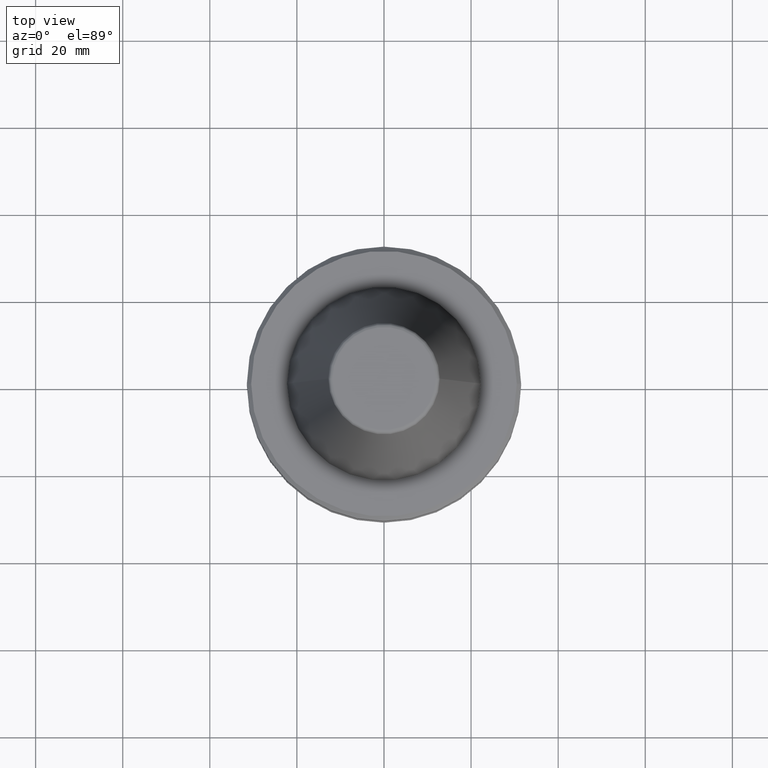
[diagram: clean part render]
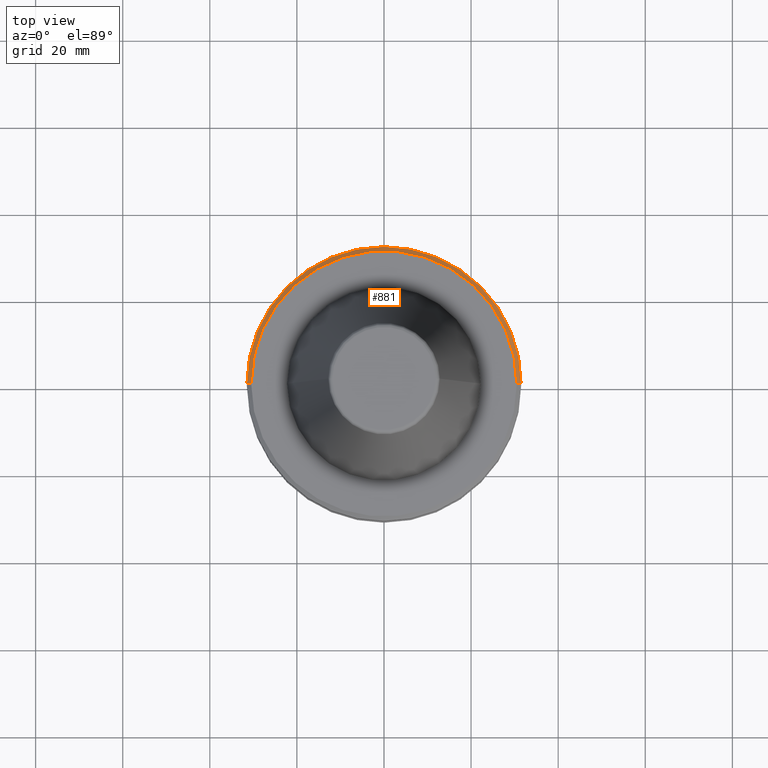
[diagram: same view with one face highlighted and labeled with its STEP entity id]
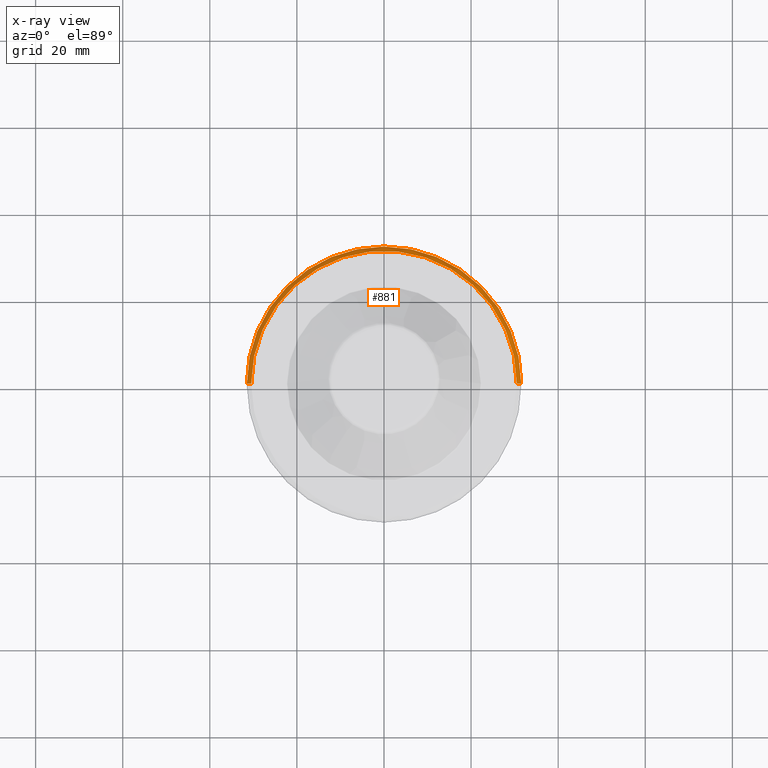
[diagram: x-ray of the same camera — body ghosted, the highlighted face saturated]
A machine part, top view. The second image highlights one B-rep face of the part: STEP entity #881.
The next image is the same camera in x-ray: the body ghosted, the highlighted face saturated — about 0% of this face is hidden behind the body in this view.
In plain terms, the highlighted conical surface has half-angle 45 deg.
Its self-contained STEP definition (entity closure, byte-faithful):
#2 = CARTESIAN_POINT ( 'NONE',  ( -30.49999999999997200, 0.0000000000000000000, -67.40000000000034700 ) ) ;
#33 = DIRECTION ( 'NONE',  ( -0.0000000000000000000, -0.0000000000000000000, 1.000000000000000000 ) ) ;
#57 = LINE ( 'NONE', #181, #892 ) ;
#63 = ORIENTED_EDGE ( 'NONE', *, *, #766, .F. ) ;
#147 = AXIS2_PLACEMENT_3D ( 'NONE', #745, #927, #991 ) ;
#148 = VERTEX_POINT ( 'NONE', #550 ) ;
#180 = DIRECTION ( 'NONE',  ( 1.000000000000000000, 0.0000000000000000000, 0.0000000000000000000 ) ) ;
#181 = CARTESIAN_POINT ( 'NONE',  ( -30.49999999999997200, 0.0000000000000000000, -67.40000000000034700 ) ) ;
#315 = FACE_OUTER_BOUND ( 'NONE', #556, .T. ) ;
#333 = CARTESIAN_POINT ( 'NONE',  ( 0.0000000000000000000, 0.0000000000000000000, -67.40000000000034700 ) ) ;
#396 = ORIENTED_EDGE ( 'NONE', *, *, #791, .F. ) ;
#429 = VERTEX_POINT ( 'NONE', #931 ) ;
#457 = VERTEX_POINT ( 'NONE', #757 ) ;
#493 = CONICAL_SURFACE ( 'NONE', #147, 30.49999999999997200, 0.7853981633974482800 ) ;
#501 = AXIS2_PLACEMENT_3D ( 'NONE', #533, #33, #1010 ) ;
#524 = DIRECTION ( 'NONE',  ( -0.7071067811865474600, 0.0000000000000000000, -0.7071067811865475700 ) ) ;
#528 = VERTEX_POINT ( 'NONE', #2 ) ;
#533 = CARTESIAN_POINT ( 'NONE',  ( 0.0000000000000000000, 0.0000000000000000000, -68.40000000000046000 ) ) ;
#550 = CARTESIAN_POINT ( 'NONE',  ( 31.50000000000008500, 0.0000000000000000000, -68.40000000000046000 ) ) ;
#556 = EDGE_LOOP ( 'NONE', ( #63, #727, #737, #396 ) ) ;
#698 = AXIS2_PLACEMENT_3D ( 'NONE', #333, #841, #180 ) ;
#717 = CARTESIAN_POINT ( 'NONE',  ( 30.49999999999997200, 3.735172737399423600E-015, -67.40000000000034700 ) ) ;
#727 = ORIENTED_EDGE ( 'NONE', *, *, #773, .T. ) ;
#730 = LINE ( 'NONE', #717, #929 ) ;
#737 = ORIENTED_EDGE ( 'NONE', *, *, #778, .T. ) ;
#745 = CARTESIAN_POINT ( 'NONE',  ( 0.0000000000000000000, 0.0000000000000000000, -67.40000000000034700 ) ) ;
#757 = CARTESIAN_POINT ( 'NONE',  ( -31.50000000000008500, 3.857637417314172900E-015, -68.40000000000046000 ) ) ;
#766 = EDGE_CURVE ( 'NONE', #429, #528, #961, .T. ) ;
#773 = EDGE_CURVE ( 'NONE', #429, #148, #730, .T. ) ;
#778 = EDGE_CURVE ( 'NONE', #148, #457, #780, .T. ) ;
#780 = CIRCLE ( 'NONE', #501, 31.50000000000008500 ) ;
#783 = DIRECTION ( 'NONE',  ( 0.7071067811865474600, 8.659560562354931600E-017, -0.7071067811865475700 ) ) ;
#791 = EDGE_CURVE ( 'NONE', #528, #457, #57, .T. ) ;
#841 = DIRECTION ( 'NONE',  ( -0.0000000000000000000, -0.0000000000000000000, 1.000000000000000000 ) ) ;
#881 = ADVANCED_FACE ( 'NONE', ( #315 ), #493, .T. ) ;
#892 = VECTOR ( 'NONE', #524, 1000.000000000000000 ) ;
#927 = DIRECTION ( 'NONE',  ( 0.0000000000000000000, 0.0000000000000000000, -1.000000000000000000 ) ) ;
#929 = VECTOR ( 'NONE', #783, 1000.000000000000000 ) ;
#931 = CARTESIAN_POINT ( 'NONE',  ( 30.49999999999997200, 3.796405077356798300E-015, -67.40000000000034700 ) ) ;
#961 = CIRCLE ( 'NONE', #698, 30.49999999999997200 ) ;
#991 = DIRECTION ( 'NONE',  ( -1.000000000000000000, 0.0000000000000000000, 0.0000000000000000000 ) ) ;
#1010 = DIRECTION ( 'NONE',  ( 1.000000000000000000, 0.0000000000000000000, 0.0000000000000000000 ) ) ;